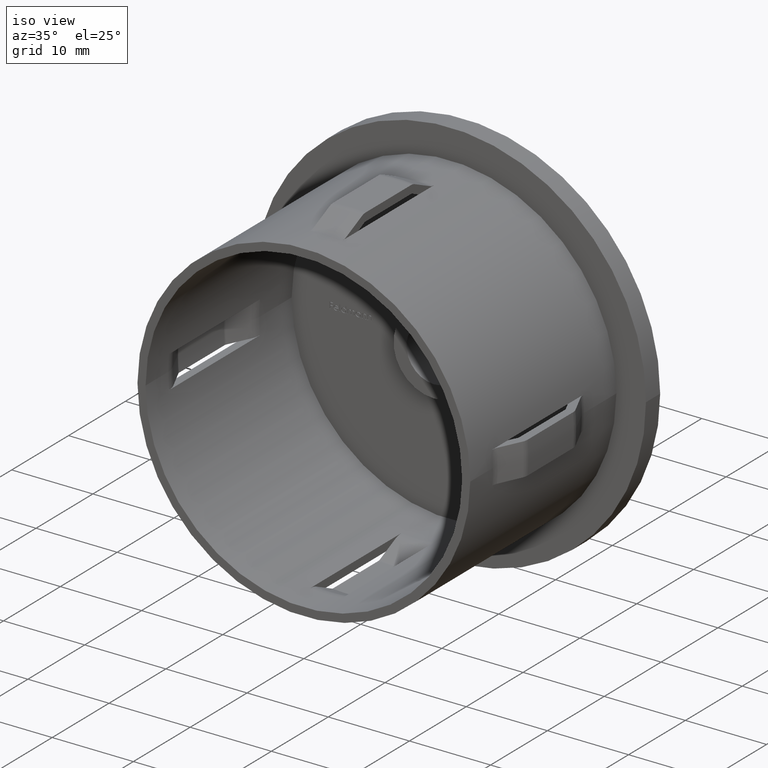
[diagram: clean part render]
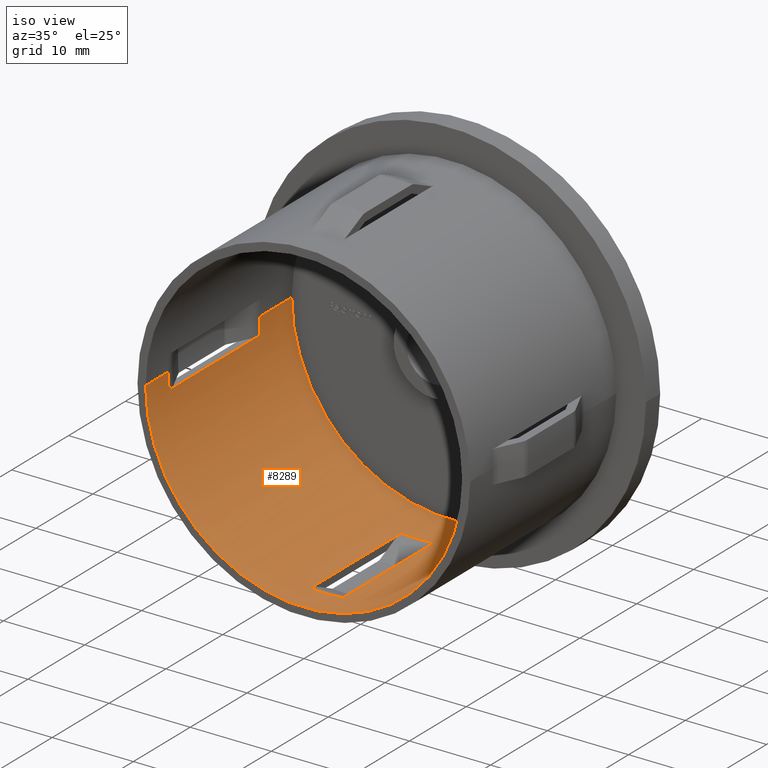
[diagram: same view with one face highlighted and labeled with its STEP entity id]
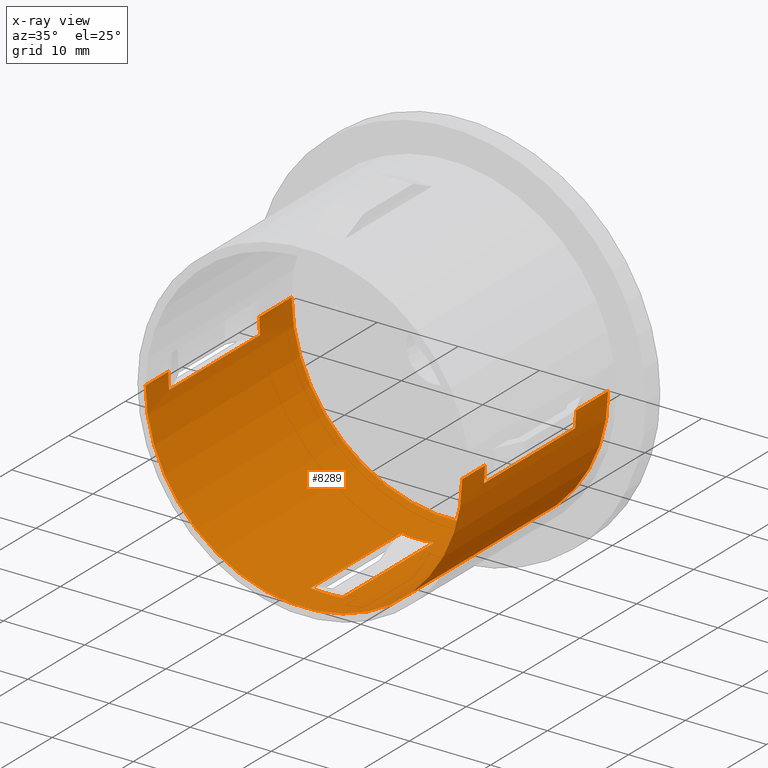
[diagram: x-ray of the same camera — body ghosted, the highlighted face saturated]
A machine part, iso view. The second image highlights one B-rep face of the part: STEP entity #8289.
The next image is the same camera in x-ray: the body ghosted, the highlighted face saturated — about 0% of this face is hidden behind the body in this view.
In plain terms, the highlighted cylindrical surface (partial cylindrical patch) has radius 19.5 mm, axis along (-0, 1, -0).
Its self-contained STEP definition (entity closure, byte-faithful):
#77 = AXIS2_PLACEMENT_3D ( 'NONE', #15951, #10986, #13406 ) ;
#83 = CARTESIAN_POINT ( 'NONE',  ( 19.50000000000000400, 4.000000000000000000, 2.388061258337339300E-015 ) ) ;
#185 = CIRCLE ( 'NONE', #77, 19.50000000000000400 ) ;
#287 = ORIENTED_EDGE ( 'NONE', *, *, #8908, .F. ) ;
#343 = CARTESIAN_POINT ( 'NONE',  ( 19.50000000000000400, -1.261611902813349400E-016, 2.388061258337339300E-015 ) ) ;
#894 = CIRCLE ( 'NONE', #5237, 19.50000000000000000 ) ;
#1053 = VERTEX_POINT ( 'NONE', #6382 ) ;
#1338 = AXIS2_PLACEMENT_3D ( 'NONE', #14264, #1490, #2735 ) ;
#1468 = EDGE_CURVE ( 'NONE', #5943, #10261, #4694, .T. ) ;
#1490 = DIRECTION ( 'NONE',  ( -1.714505518806297100E-016, 1.000000000000000000, -0.0000000000000000000 ) ) ;
#1640 = CARTESIAN_POINT ( 'NONE',  ( 19.50000000000000400, 28.20000000000000300, 2.388061258337339300E-015 ) ) ;
#1661 = ORIENTED_EDGE ( 'NONE', *, *, #14091, .T. ) ;
#1889 = ORIENTED_EDGE ( 'NONE', *, *, #5296, .F. ) ;
#2021 = VECTOR ( 'NONE', #11527, 1000.000000000000000 ) ;
#2041 = DIRECTION ( 'NONE',  ( -1.714505518806297100E-016, 1.000000000000000000, -0.0000000000000000000 ) ) ;
#2224 = CIRCLE ( 'NONE', #1338, 19.50000000000000400 ) ;
#2336 = VECTOR ( 'NONE', #2365, 1000.000000000000000 ) ;
#2351 = DIRECTION ( 'NONE',  ( -1.000000000000000000, -1.779203565104417600E-016, 0.0000000000000000000 ) ) ;
#2365 = DIRECTION ( 'NONE',  ( 0.0000000000000000000, -1.000000000000000000, 0.0000000000000000000 ) ) ;
#2529 = LINE ( 'NONE', #13318, #7113 ) ;
#2556 = CARTESIAN_POINT ( 'NONE',  ( 2.000000000000008000, 19.99999999999999300, -19.39716474127082800 ) ) ;
#2571 = FACE_OUTER_BOUND ( 'NONE', #12788, .T. ) ;
#2640 = ORIENTED_EDGE ( 'NONE', *, *, #5234, .T. ) ;
#2696 = CIRCLE ( 'NONE', #5709, 19.50000000000000400 ) ;
#2735 = DIRECTION ( 'NONE',  ( -1.000000000000000000, -1.779203565104417100E-016, 0.0000000000000000000 ) ) ;
#2943 = VECTOR ( 'NONE', #14405, 1000.000000000000000 ) ;
#3231 = CARTESIAN_POINT ( 'NONE',  ( -19.50000000000000400, 28.19999999999999600, 0.0000000000000000000 ) ) ;
#3337 = LINE ( 'NONE', #10120, #16411 ) ;
#3363 = LINE ( 'NONE', #1640, #2943 ) ;
#3446 = DIRECTION ( 'NONE',  ( -1.714505518806297100E-016, 1.000000000000000000, -0.0000000000000000000 ) ) ;
#3572 = DIRECTION ( 'NONE',  ( -1.714505518806297100E-016, 1.000000000000000000, -0.0000000000000000000 ) ) ;
#3971 = ORIENTED_EDGE ( 'NONE', *, *, #7723, .F. ) ;
#4230 = CARTESIAN_POINT ( 'NONE',  ( -19.49999999999999600, -6.812732713625892700E-015, 0.0000000000000000000 ) ) ;
#4301 = ORIENTED_EDGE ( 'NONE', *, *, #16087, .F. ) ;
#4690 = DIRECTION ( 'NONE',  ( -1.000000000000000000, -1.779203565104417600E-016, 0.0000000000000000000 ) ) ;
#4694 = LINE ( 'NONE', #8775, #12816 ) ;
#4946 = ORIENTED_EDGE ( 'NONE', *, *, #15842, .T. ) ;
#5125 = DIRECTION ( 'NONE',  ( -1.000000000000000000, -1.714505518806296900E-016, 0.0000000000000000000 ) ) ;
#5179 = CARTESIAN_POINT ( 'NONE',  ( 19.39716474127082800, 51.72464896776082800, -2.000000000000000000 ) ) ;
#5234 = EDGE_CURVE ( 'NONE', #8627, #10261, #13566, .T. ) ;
#5237 = AXIS2_PLACEMENT_3D ( 'NONE', #9055, #7598, #5125 ) ;
#5296 = EDGE_CURVE ( 'NONE', #13221, #1053, #2224, .T. ) ;
#5331 = ORIENTED_EDGE ( 'NONE', *, *, #10138, .T. ) ;
#5575 = FACE_BOUND ( 'NONE', #8420, .T. ) ;
#5654 = DIRECTION ( 'NONE',  ( -1.000000000000000000, -1.779203565104417600E-016, 0.0000000000000000000 ) ) ;
#5709 = AXIS2_PLACEMENT_3D ( 'NONE', #13502, #2041, #12392 ) ;
#5859 = VERTEX_POINT ( 'NONE', #14283 ) ;
#5943 = VERTEX_POINT ( 'NONE', #6910 ) ;
#6083 = EDGE_CURVE ( 'NONE', #16232, #6682, #14730, .T. ) ;
#6091 = CARTESIAN_POINT ( 'NONE',  ( -19.50000000000000400, 19.99999999999998900, 0.0000000000000000000 ) ) ;
#6174 = AXIS2_PLACEMENT_3D ( 'NONE', #11245, #12404, #4690 ) ;
#6225 = EDGE_CURVE ( 'NONE', #1053, #5859, #11387, .T. ) ;
#6378 = DIRECTION ( 'NONE',  ( -1.714505518806297100E-016, 1.000000000000000000, -0.0000000000000000000 ) ) ;
#6382 = CARTESIAN_POINT ( 'NONE',  ( 19.39716474127082800, 19.99999999999998900, -2.000000000000000000 ) ) ;
#6427 = ORIENTED_EDGE ( 'NONE', *, *, #6225, .F. ) ;
#6484 = DIRECTION ( 'NONE',  ( -1.714505518806297100E-016, 1.000000000000000000, -0.0000000000000000000 ) ) ;
#6638 = VERTEX_POINT ( 'NONE', #83 ) ;
#6682 = VERTEX_POINT ( 'NONE', #15527 ) ;
#6883 = EDGE_CURVE ( 'NONE', #10727, #6682, #12364, .T. ) ;
#6910 = CARTESIAN_POINT ( 'NONE',  ( -1.999999999999996200, 19.99999999999998900, -19.39716474127082400 ) ) ;
#7113 = VECTOR ( 'NONE', #15749, 1000.000000000000000 ) ;
#7144 = CARTESIAN_POINT ( 'NONE',  ( 2.000000000000007500, 3.999999999999996400, -19.39716474127082400 ) ) ;
#7220 = VERTEX_POINT ( 'NONE', #12913 ) ;
#7351 = CARTESIAN_POINT ( 'NONE',  ( -19.39716474127082100, 51.72464896776082800, -2.000000000000000000 ) ) ;
#7484 = AXIS2_PLACEMENT_3D ( 'NONE', #10674, #13262, #5654 ) ;
#7551 = VECTOR ( 'NONE', #3446, 1000.000000000000000 ) ;
#7598 = DIRECTION ( 'NONE',  ( -1.714505518806297100E-016, 1.000000000000000000, -0.0000000000000000000 ) ) ;
#7723 = EDGE_CURVE ( 'NONE', #9444, #10727, #185, .T. ) ;
#8084 = VERTEX_POINT ( 'NONE', #4230 ) ;
#8285 = ORIENTED_EDGE ( 'NONE', *, *, #1468, .F. ) ;
#8289 = ADVANCED_FACE ( 'NONE', ( #5575, #2571 ), #11731, .F. ) ;
#8420 = EDGE_LOOP ( 'NONE', ( #13606, #2640, #8285, #4301 ) ) ;
#8627 = VERTEX_POINT ( 'NONE', #7144 ) ;
#8775 = CARTESIAN_POINT ( 'NONE',  ( -1.999999999999996200, 51.72464896776082800, -19.39716474127082400 ) ) ;
#8790 = DIRECTION ( 'NONE',  ( -1.714505518806297100E-016, 1.000000000000000000, -0.0000000000000000000 ) ) ;
#8908 = EDGE_CURVE ( 'NONE', #8084, #11414, #12518, .T. ) ;
#9020 = AXIS2_PLACEMENT_3D ( 'NONE', #12735, #6378, #13928 ) ;
#9055 = CARTESIAN_POINT ( 'NONE',  ( 4.589976203204287100E-015, -3.469446951953614200E-015, 0.0000000000000000000 ) ) ;
#9444 = VERTEX_POINT ( 'NONE', #11762 ) ;
#9561 = CARTESIAN_POINT ( 'NONE',  ( -19.49999999999999600, 3.999999999999993300, 0.0000000000000000000 ) ) ;
#10003 = CARTESIAN_POINT ( 'NONE',  ( -1.999999999999993100, 3.999999999999996400, -19.39716474127082400 ) ) ;
#10022 = CARTESIAN_POINT ( 'NONE',  ( 3.904173995681768100E-015, 3.999999999999996400, 0.0000000000000000000 ) ) ;
#10120 = CARTESIAN_POINT ( 'NONE',  ( 19.50000000000000400, 28.20000000000000300, 2.388061258337339300E-015 ) ) ;
#10126 = VECTOR ( 'NONE', #10745, 1000.000000000000000 ) ;
#10138 = EDGE_CURVE ( 'NONE', #6638, #5859, #15050, .T. ) ;
#10226 = AXIS2_PLACEMENT_3D ( 'NONE', #16264, #3572, #14869 ) ;
#10261 = VERTEX_POINT ( 'NONE', #10003 ) ;
#10404 = EDGE_CURVE ( 'NONE', #13221, #16232, #3363, .T. ) ;
#10488 = EDGE_CURVE ( 'NONE', #13482, #8627, #2529, .T. ) ;
#10674 = CARTESIAN_POINT ( 'NONE',  ( 3.904173995681768100E-015, 3.999999999999996400, 0.0000000000000000000 ) ) ;
#10727 = VERTEX_POINT ( 'NONE', #6091 ) ;
#10745 = DIRECTION ( 'NONE',  ( -1.714505518806297100E-016, 1.000000000000000000, -0.0000000000000000000 ) ) ;
#10986 = DIRECTION ( 'NONE',  ( -1.714505518806297100E-016, 1.000000000000000000, -0.0000000000000000000 ) ) ;
#11245 = CARTESIAN_POINT ( 'NONE',  ( 3.904173995681768100E-015, 3.999999999999996400, 0.0000000000000000000 ) ) ;
#11387 = LINE ( 'NONE', #5179, #2021 ) ;
#11414 = VERTEX_POINT ( 'NONE', #9561 ) ;
#11527 = DIRECTION ( 'NONE',  ( 0.0000000000000000000, -1.000000000000000000, 0.0000000000000000000 ) ) ;
#11731 = CYLINDRICAL_SURFACE ( 'NONE', #10226, 19.50000000000000400 ) ;
#11762 = CARTESIAN_POINT ( 'NONE',  ( -19.39716474127082800, 19.99999999999998900, -2.000000000000000400 ) ) ;
#11954 = VERTEX_POINT ( 'NONE', #343 ) ;
#12364 = LINE ( 'NONE', #14903, #7551 ) ;
#12390 = EDGE_CURVE ( 'NONE', #11954, #8084, #894, .T. ) ;
#12392 = DIRECTION ( 'NONE',  ( -1.000000000000000000, -1.779203565104417100E-016, 0.0000000000000000000 ) ) ;
#12404 = DIRECTION ( 'NONE',  ( -1.714505518806297100E-016, 1.000000000000000000, -0.0000000000000000000 ) ) ;
#12518 = LINE ( 'NONE', #3231, #10126 ) ;
#12570 = ORIENTED_EDGE ( 'NONE', *, *, #6883, .F. ) ;
#12735 = CARTESIAN_POINT ( 'NONE',  ( 1.836970198721037800E-016, 25.69999999999999600, 0.0000000000000000000 ) ) ;
#12788 = EDGE_LOOP ( 'NONE', ( #16410, #4946, #5331, #6427, #1889, #15975, #15013, #12570, #3971, #1661, #14770, #287 ) ) ;
#12816 = VECTOR ( 'NONE', #14986, 1000.000000000000000 ) ;
#12913 = CARTESIAN_POINT ( 'NONE',  ( -19.39716474127082100, 3.999999999999993300, -1.999999999999999600 ) ) ;
#13180 = CARTESIAN_POINT ( 'NONE',  ( 19.50000000000000400, 19.99999999999999600, 2.388061258337339300E-015 ) ) ;
#13221 = VERTEX_POINT ( 'NONE', #13180 ) ;
#13262 = DIRECTION ( 'NONE',  ( -1.714505518806297100E-016, 1.000000000000000000, -0.0000000000000000000 ) ) ;
#13318 = CARTESIAN_POINT ( 'NONE',  ( 2.000000000000004900, 51.72464896776082800, -19.39716474127082400 ) ) ;
#13406 = DIRECTION ( 'NONE',  ( -1.000000000000000000, -1.779203565104417100E-016, 0.0000000000000000000 ) ) ;
#13482 = VERTEX_POINT ( 'NONE', #2556 ) ;
#13502 = CARTESIAN_POINT ( 'NONE',  ( 1.160965165591693700E-015, 19.99999999999999300, 0.0000000000000000000 ) ) ;
#13566 = CIRCLE ( 'NONE', #16154, 19.50000000000000000 ) ;
#13606 = ORIENTED_EDGE ( 'NONE', *, *, #10488, .T. ) ;
#13928 = DIRECTION ( 'NONE',  ( -1.000000000000000000, -1.779203565104417600E-016, 0.0000000000000000000 ) ) ;
#13949 = EDGE_CURVE ( 'NONE', #7220, #11414, #15060, .T. ) ;
#14091 = EDGE_CURVE ( 'NONE', #9444, #7220, #15443, .T. ) ;
#14264 = CARTESIAN_POINT ( 'NONE',  ( 1.160965165591693700E-015, 19.99999999999999300, 0.0000000000000000000 ) ) ;
#14283 = CARTESIAN_POINT ( 'NONE',  ( 19.39716474127082800, 4.000000000000000000, -1.999999999999999600 ) ) ;
#14405 = DIRECTION ( 'NONE',  ( -1.714505518806297100E-016, 1.000000000000000000, -0.0000000000000000000 ) ) ;
#14730 = CIRCLE ( 'NONE', #9020, 19.50000000000000000 ) ;
#14770 = ORIENTED_EDGE ( 'NONE', *, *, #13949, .T. ) ;
#14869 = DIRECTION ( 'NONE',  ( -1.000000000000000000, -1.779203565104417100E-016, 0.0000000000000000000 ) ) ;
#14903 = CARTESIAN_POINT ( 'NONE',  ( -19.50000000000000400, 28.19999999999999600, 0.0000000000000000000 ) ) ;
#14986 = DIRECTION ( 'NONE',  ( 0.0000000000000000000, -1.000000000000000000, 0.0000000000000000000 ) ) ;
#15013 = ORIENTED_EDGE ( 'NONE', *, *, #6083, .T. ) ;
#15050 = CIRCLE ( 'NONE', #6174, 19.50000000000000000 ) ;
#15060 = CIRCLE ( 'NONE', #7484, 19.50000000000000000 ) ;
#15244 = CARTESIAN_POINT ( 'NONE',  ( 19.50000000000000000, 25.69999999999999900, 2.388061258337338900E-015 ) ) ;
#15443 = LINE ( 'NONE', #7351, #2336 ) ;
#15527 = CARTESIAN_POINT ( 'NONE',  ( -19.50000000000000000, 25.69999999999999200, 0.0000000000000000000 ) ) ;
#15749 = DIRECTION ( 'NONE',  ( 0.0000000000000000000, -1.000000000000000000, 0.0000000000000000000 ) ) ;
#15842 = EDGE_CURVE ( 'NONE', #11954, #6638, #3337, .T. ) ;
#15951 = CARTESIAN_POINT ( 'NONE',  ( 1.160965165591693700E-015, 19.99999999999999300, 0.0000000000000000000 ) ) ;
#15975 = ORIENTED_EDGE ( 'NONE', *, *, #10404, .T. ) ;
#16087 = EDGE_CURVE ( 'NONE', #13482, #5943, #2696, .T. ) ;
#16154 = AXIS2_PLACEMENT_3D ( 'NONE', #10022, #8790, #2351 ) ;
#16232 = VERTEX_POINT ( 'NONE', #15244 ) ;
#16264 = CARTESIAN_POINT ( 'NONE',  ( -2.449293598294708900E-016, 28.19999999999999900, 0.0000000000000000000 ) ) ;
#16410 = ORIENTED_EDGE ( 'NONE', *, *, #12390, .F. ) ;
#16411 = VECTOR ( 'NONE', #6484, 1000.000000000000000 ) ;